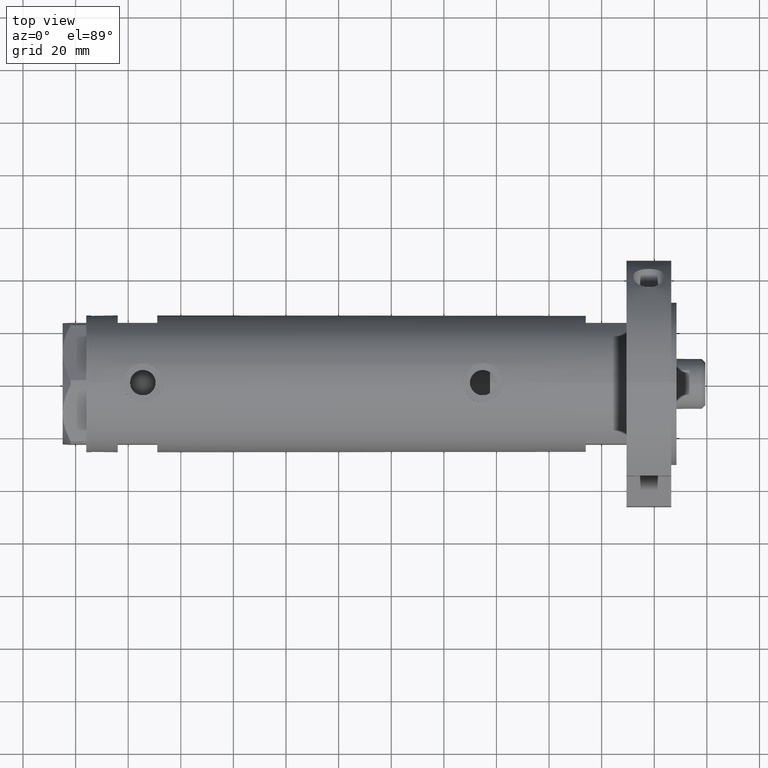
[diagram: clean part render]
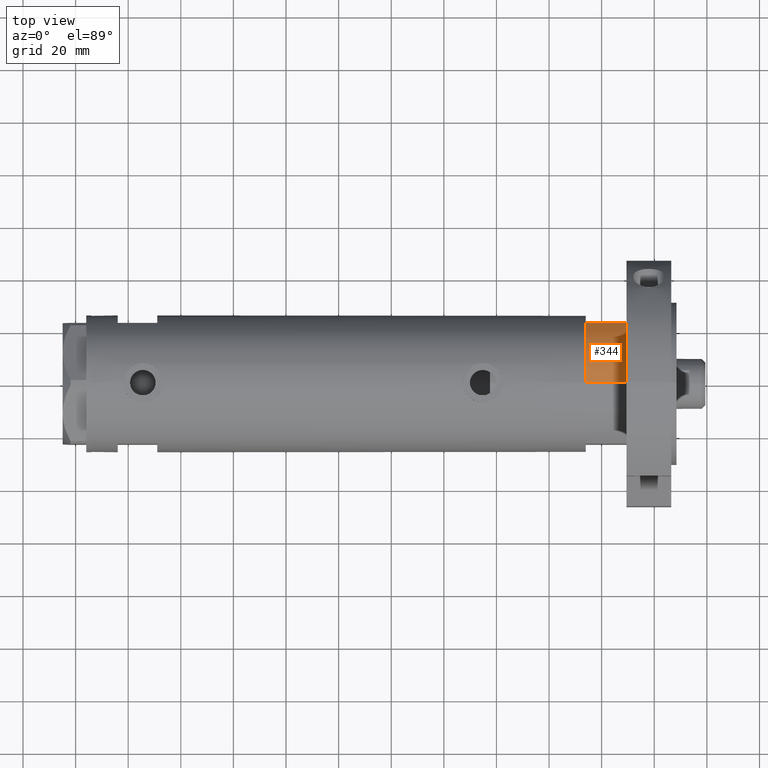
[diagram: same view with one face highlighted and labeled with its STEP entity id]
A machine part, top view. The second image highlights one B-rep face of the part: STEP entity #344.
In plain terms, the highlighted cylindrical surface (partial cylindrical patch) has radius 26 mm, axis along (-1, -0, 0).
Its self-contained STEP definition (entity closure, byte-faithful):
#344 = ADVANCED_FACE ( 'NONE', ( #4647 ), #2701, .T. ) ;
#701 = ORIENTED_EDGE ( 'NONE', *, *, #1189, .F. ) ;
#738 = VECTOR ( 'NONE', #4230, 1000.000000000000000 ) ;
#843 = DIRECTION ( 'NONE',  ( 1.000000000000000000, 0.000000000000000000, 0.000000000000000000 ) ) ;
#924 = AXIS2_PLACEMENT_3D ( 'NONE', #5298, #3992, #843 ) ;
#1189 = EDGE_CURVE ( 'NONE', #5292, #4689, #6482, .T. ) ;
#1300 = EDGE_CURVE ( 'NONE', #1715, #1946, #6390, .T. ) ;
#1439 = CARTESIAN_POINT ( 'NONE',  ( -26.00000000000000355, 0.000000000000000000, 15.50000000000000000 ) ) ;
#1715 = VERTEX_POINT ( 'NONE', #2436 ) ;
#1880 = AXIS2_PLACEMENT_3D ( 'NONE', #3740, #6239, #5700 ) ;
#1946 = VERTEX_POINT ( 'NONE', #2628 ) ;
#2131 = CARTESIAN_POINT ( 'NONE',  ( -12.12435565298214613, 23.00000000000000355, 15.50000000000000000 ) ) ;
#2213 = DIRECTION ( 'NONE',  ( -0.000000000000000000, -0.000000000000000000, -1.000000000000000000 ) ) ;
#2232 = VECTOR ( 'NONE', #2577, 1000.000000000000000 ) ;
#2266 = LINE ( 'NONE', #5217, #738 ) ;
#2436 = CARTESIAN_POINT ( 'NONE',  ( -12.12435565298215145, 23.00000000000000355, 0.000000000000000000 ) ) ;
#2577 = DIRECTION ( 'NONE',  ( -0.000000000000000000, -0.000000000000000000, -1.000000000000000000 ) ) ;
#2628 = CARTESIAN_POINT ( 'NONE',  ( -26.00000000000000355, 0.000000000000000000, 0.000000000000000000 ) ) ;
#2636 = CARTESIAN_POINT ( 'NONE',  ( 0.000000000000000000, 0.000000000000000000, 15.50000000000000000 ) ) ;
#2701 = CYLINDRICAL_SURFACE ( 'NONE', #6298, 26.00000000000000355 ) ;
#2995 = ORIENTED_EDGE ( 'NONE', *, *, #4447, .F. ) ;
#3015 = EDGE_CURVE ( 'NONE', #1715, #5292, #2266, .T. ) ;
#3727 = DIRECTION ( 'NONE',  ( -1.000000000000000000, 0.000000000000000000, 0.000000000000000000 ) ) ;
#3740 = CARTESIAN_POINT ( 'NONE',  ( 0.000000000000000000, 0.000000000000000000, 15.50000000000000000 ) ) ;
#3992 = DIRECTION ( 'NONE',  ( 0.000000000000000000, 0.000000000000000000, 1.000000000000000000 ) ) ;
#4230 = DIRECTION ( 'NONE',  ( -0.000000000000000000, -0.000000000000000000, 1.000000000000000000 ) ) ;
#4447 = EDGE_CURVE ( 'NONE', #4689, #1946, #5521, .T. ) ;
#4552 = CARTESIAN_POINT ( 'NONE',  ( -26.00000000000000355, 0.000000000000000000, 15.50000000000000000 ) ) ;
#4647 = FACE_OUTER_BOUND ( 'NONE', #4802, .T. ) ;
#4689 = VERTEX_POINT ( 'NONE', #1439 ) ;
#4797 = ORIENTED_EDGE ( 'NONE', *, *, #3015, .F. ) ;
#4802 = EDGE_LOOP ( 'NONE', ( #2995, #701, #4797, #5927 ) ) ;
#5217 = CARTESIAN_POINT ( 'NONE',  ( -12.12435565298215145, 23.00000000000000355, 0.000000000000000000 ) ) ;
#5292 = VERTEX_POINT ( 'NONE', #2131 ) ;
#5298 = CARTESIAN_POINT ( 'NONE',  ( 0.000000000000000000, 0.000000000000000000, 0.000000000000000000 ) ) ;
#5521 = LINE ( 'NONE', #4552, #2232 ) ;
#5700 = DIRECTION ( 'NONE',  ( 1.000000000000000000, 0.000000000000000000, 0.000000000000000000 ) ) ;
#5927 = ORIENTED_EDGE ( 'NONE', *, *, #1300, .T. ) ;
#6239 = DIRECTION ( 'NONE',  ( 0.000000000000000000, 0.000000000000000000, 1.000000000000000000 ) ) ;
#6298 = AXIS2_PLACEMENT_3D ( 'NONE', #2636, #2213, #3727 ) ;
#6390 = CIRCLE ( 'NONE', #924, 26.00000000000000355 ) ;
#6482 = CIRCLE ( 'NONE', #1880, 26.00000000000000355 ) ;